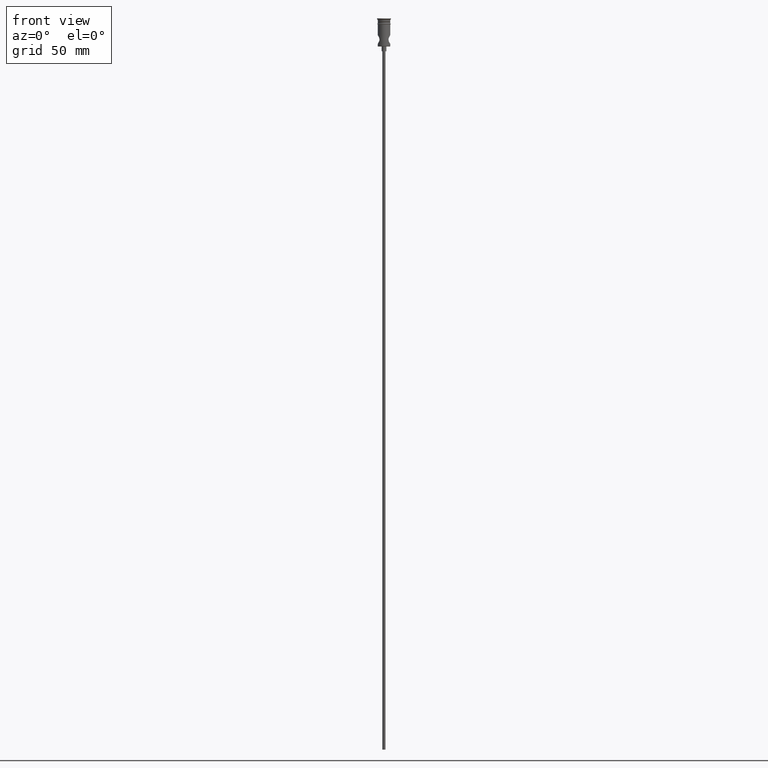
[diagram: clean part render]
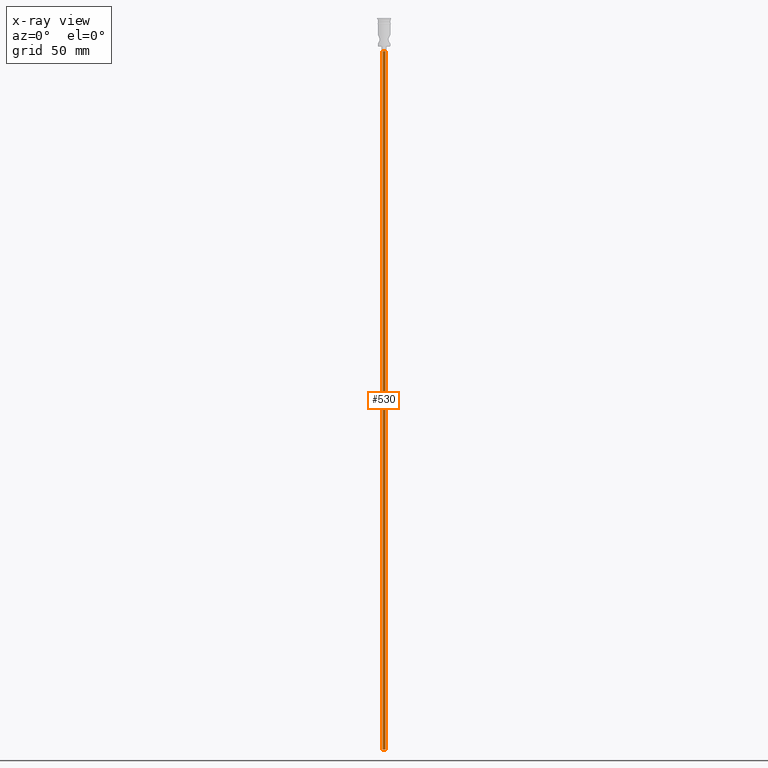
[diagram: x-ray — body ghosted, one internal face saturated and labeled with its STEP entity id]
A machine part, front view, then the same camera in x-ray: the body is ghosted and one INTERNAL B-rep face — a face not visible from any outside direction — is saturated and labeled: STEP entity #530.
In plain terms, the highlighted cylindrical surface (edge-blend (fillet) strip) has radius 1 mm, axis along (-0, -0, 1).
Its self-contained STEP definition (entity closure, byte-faithful):
#36 = CYLINDRICAL_SURFACE ( 'NONE', #624, 0.9999999999999997780 ) ;
#45 = CARTESIAN_POINT ( 'NONE',  ( -0.9999999999999997780, 1.224646799147352961E-16, -468.0000000000000000 ) ) ;
#106 = ORIENTED_EDGE ( 'NONE', *, *, #354, .F. ) ;
#137 = LINE ( 'NONE', #548, #1196 ) ;
#205 = VECTOR ( 'NONE', #764, 1000.000000000000000 ) ;
#218 = CARTESIAN_POINT ( 'NONE',  ( 0.000000000000000000, 0.000000000000000000, -468.0000000000000000 ) ) ;
#316 = VERTEX_POINT ( 'NONE', #1410 ) ;
#340 = EDGE_CURVE ( 'NONE', #316, #768, #1017, .T. ) ;
#354 = EDGE_CURVE ( 'NONE', #316, #418, #960, .T. ) ;
#403 = CARTESIAN_POINT ( 'NONE',  ( 0.9999999999999997780, 0.000000000000000000, -20.99999999999999645 ) ) ;
#418 = VERTEX_POINT ( 'NONE', #1009 ) ;
#434 = EDGE_CURVE ( 'NONE', #418, #1355, #137, .T. ) ;
#435 = DIRECTION ( 'NONE',  ( -1.000000000000000000, 0.000000000000000000, 0.000000000000000000 ) ) ;
#441 = DIRECTION ( 'NONE',  ( -0.000000000000000000, -0.000000000000000000, 1.000000000000000000 ) ) ;
#468 = DIRECTION ( 'NONE',  ( 0.000000000000000000, 0.000000000000000000, -1.000000000000000000 ) ) ;
#484 = ORIENTED_EDGE ( 'NONE', *, *, #340, .T. ) ;
#510 = CIRCLE ( 'NONE', #1246, 0.9999999999999997780 ) ;
#521 = DIRECTION ( 'NONE',  ( 1.000000000000000000, 0.000000000000000000, 0.000000000000000000 ) ) ;
#530 = ADVANCED_FACE ( 'NONE', ( #1007 ), #36, .T. ) ;
#534 = DIRECTION ( 'NONE',  ( 0.000000000000000000, 0.000000000000000000, -1.000000000000000000 ) ) ;
#548 = CARTESIAN_POINT ( 'NONE',  ( 0.9999999999999997780, 0.000000000000000000, -468.0000000000000000 ) ) ;
#568 = CARTESIAN_POINT ( 'NONE',  ( 0.000000000000000000, 0.000000000000000000, -20.99999999999999645 ) ) ;
#624 = AXIS2_PLACEMENT_3D ( 'NONE', #218, #441, #521 ) ;
#745 = CARTESIAN_POINT ( 'NONE',  ( -0.9999999999999997780, 1.224646799147352961E-16, -20.99999999999999645 ) ) ;
#764 = DIRECTION ( 'NONE',  ( -0.000000000000000000, -0.000000000000000000, 1.000000000000000000 ) ) ;
#768 = VERTEX_POINT ( 'NONE', #745 ) ;
#906 = DIRECTION ( 'NONE',  ( -0.000000000000000000, -0.000000000000000000, 1.000000000000000000 ) ) ;
#960 = CIRCLE ( 'NONE', #1057, 0.9999999999999997780 ) ;
#992 = ORIENTED_EDGE ( 'NONE', *, *, #1185, .T. ) ;
#1007 = FACE_OUTER_BOUND ( 'NONE', #1335, .T. ) ;
#1009 = CARTESIAN_POINT ( 'NONE',  ( 0.9999999999999997780, 0.000000000000000000, -468.0000000000000000 ) ) ;
#1017 = LINE ( 'NONE', #45, #205 ) ;
#1057 = AXIS2_PLACEMENT_3D ( 'NONE', #1103, #534, #435 ) ;
#1081 = ORIENTED_EDGE ( 'NONE', *, *, #434, .F. ) ;
#1103 = CARTESIAN_POINT ( 'NONE',  ( 0.000000000000000000, 0.000000000000000000, -468.0000000000000000 ) ) ;
#1156 = DIRECTION ( 'NONE',  ( -1.000000000000000000, 0.000000000000000000, 0.000000000000000000 ) ) ;
#1185 = EDGE_CURVE ( 'NONE', #768, #1355, #510, .T. ) ;
#1196 = VECTOR ( 'NONE', #906, 1000.000000000000000 ) ;
#1246 = AXIS2_PLACEMENT_3D ( 'NONE', #568, #468, #1156 ) ;
#1335 = EDGE_LOOP ( 'NONE', ( #106, #484, #992, #1081 ) ) ;
#1355 = VERTEX_POINT ( 'NONE', #403 ) ;
#1410 = CARTESIAN_POINT ( 'NONE',  ( -0.9999999999999997780, 1.224646799147352961E-16, -468.0000000000000000 ) ) ;